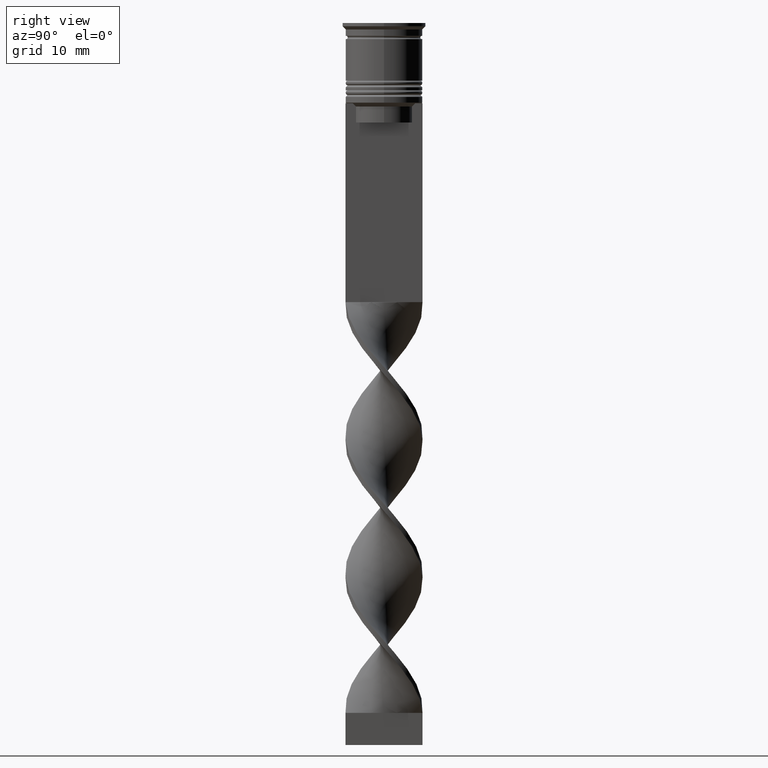
[diagram: clean part render]
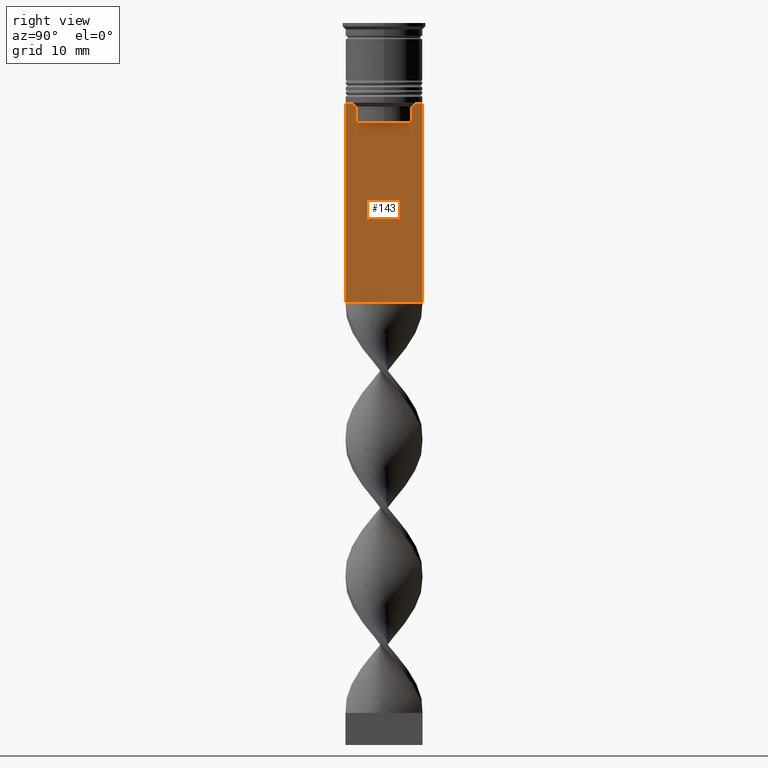
[diagram: same view with one face highlighted and labeled with its STEP entity id]
A machine part, right view. The second image highlights one B-rep face of the part: STEP entity #143.
In plain terms, the highlighted planar face has unit normal (-1, 0, 0).
Its self-contained STEP definition (entity closure, byte-faithful):
#2 = CARTESIAN_POINT ( 'NONE',  ( 0.5000000000000002220, -4.706831372970962768, -12.66671687695981774 ) ) ;
#15 = VECTOR ( 'NONE', #2517, 1000.000000000000000 ) ;
#32 = VECTOR ( 'NONE', #2877, 1000.000000000000000 ) ;
#34 = LINE ( 'NONE', #626, #32 ) ;
#143 = ADVANCED_FACE ( 'NONE', ( #1969 ), #1430, .F. ) ;
#149 = EDGE_CURVE ( 'NONE', #1038, #2399, #3064, .T. ) ;
#172 = CARTESIAN_POINT ( 'NONE',  ( 0.5000000000000002220, -6.000000000000000000, -43.50000000000000000 ) ) ;
#180 = CARTESIAN_POINT ( 'NONE',  ( 0.5000000000000002220, -5.878775382679627626, -12.50000000000000000 ) ) ;
#192 = VECTOR ( 'NONE', #609, 1000.000000000000000 ) ;
#214 = ORIENTED_EDGE ( 'NONE', *, *, #634, .T. ) ;
#265 = DIRECTION ( 'NONE',  ( 0.000000000000000000, -1.000000000000000000, 0.000000000000000000 ) ) ;
#270 = CARTESIAN_POINT ( 'NONE',  ( 0.5000000000000002220, -4.539195586926423331, -12.83338928448044314 ) ) ;
#288 = ORIENTED_EDGE ( 'NONE', *, *, #493, .T. ) ;
#308 = DIRECTION ( 'NONE',  ( 0.000000000000000000, 0.000000000000000000, -1.000000000000000000 ) ) ;
#459 = VECTOR ( 'NONE', #2255, 1000.000000000000000 ) ;
#493 = EDGE_CURVE ( 'NONE', #1217, #2519, #1967, .T. ) ;
#584 = VECTOR ( 'NONE', #308, 1000.000000000000000 ) ;
#603 = LINE ( 'NONE', #1164, #2685 ) ;
#609 = DIRECTION ( 'NONE',  ( 0.000000000000000000, 0.000000000000000000, -1.000000000000000000 ) ) ;
#619 = CARTESIAN_POINT ( 'NONE',  ( 0.5000000000000002220, -6.000000000000000000, -0.4584054212077061097 ) ) ;
#626 = CARTESIAN_POINT ( 'NONE',  ( 0.5000000000000002220, -6.000000000000000000, -12.50000000000000000 ) ) ;
#634 = EDGE_CURVE ( 'NONE', #1038, #2135, #1330, .T. ) ;
#660 = EDGE_CURVE ( 'NONE', #2519, #2600, #1608, .T. ) ;
#792 = DIRECTION ( 'NONE',  ( 0.000000000000000000, -1.000000000000000000, 0.000000000000000000 ) ) ;
#894 = ORIENTED_EDGE ( 'NONE', *, *, #1369, .T. ) ;
#910 = ORIENTED_EDGE ( 'NONE', *, *, #2246, .T. ) ;
#1038 = VERTEX_POINT ( 'NONE', #1067 ) ;
#1067 = CARTESIAN_POINT ( 'NONE',  ( 0.5000000000000002220, 6.000000000000000888, -12.50000000000000000 ) ) ;
#1096 = DIRECTION ( 'NONE',  ( -1.000000000000000000, 0.000000000000000000, 0.000000000000000000 ) ) ;
#1101 = CARTESIAN_POINT ( 'NONE',  ( 0.5000000000000002220, -4.874423042781576676, -12.50000000000000000 ) ) ;
#1144 = CARTESIAN_POINT ( 'NONE',  ( 0.5000000000000002220, 4.399999999999999467, -15.50000000000000000 ) ) ;
#1164 = CARTESIAN_POINT ( 'NONE',  ( 0.5000000000000002220, 4.371498598878878816, 0.000000000000000000 ) ) ;
#1173 = B_SPLINE_CURVE_WITH_KNOTS ( 'NONE', 3,
 ( #1307, #270, #2, #1101 ),
 .UNSPECIFIED., .F., .F.,
 ( 4, 4 ),
 ( 0.02089901220910808308, 0.02161421017310286019 ),
 .UNSPECIFIED. ) ;
#1200 = ORIENTED_EDGE ( 'NONE', *, *, #149, .F. ) ;
#1211 = EDGE_CURVE ( 'NONE', #3481, #2362, #603, .T. ) ;
#1217 = VERTEX_POINT ( 'NONE', #3089 ) ;
#1255 = CARTESIAN_POINT ( 'NONE',  ( 0.5000000000000002220, 4.371498598878878816, -13.00000000000000178 ) ) ;
#1288 = CARTESIAN_POINT ( 'NONE',  ( 0.5000000000000002220, 4.539195634199896467, -12.83338923751318816 ) ) ;
#1298 = B_SPLINE_CURVE_WITH_KNOTS ( 'NONE', 3,
 ( #3519, #2663, #1288, #1255 ),
 .UNSPECIFIED., .F., .F.,
 ( 4, 4 ),
 ( 0.008336552452178421987, 0.009045730124312839626 ),
 .UNSPECIFIED. ) ;
#1307 = CARTESIAN_POINT ( 'NONE',  ( 0.5000000000000002220, -4.371498598878878816, -13.00000000000000178 ) ) ;
#1330 = LINE ( 'NONE', #3314, #1478 ) ;
#1347 = VECTOR ( 'NONE', #1378, 1000.000000000000000 ) ;
#1369 = EDGE_CURVE ( 'NONE', #2362, #1766, #2539, .T. ) ;
#1378 = DIRECTION ( 'NONE',  ( 0.000000000000000000, 1.000000000000000000, 0.000000000000000000 ) ) ;
#1430 = PLANE ( 'NONE',  #1921 ) ;
#1450 = DIRECTION ( 'NONE',  ( 0.000000000000000000, 0.000000000000000000, 1.000000000000000000 ) ) ;
#1478 = VECTOR ( 'NONE', #792, 1000.000000000000000 ) ;
#1569 = CARTESIAN_POINT ( 'NONE',  ( 0.5000000000000002220, 4.371498598878878816, -13.00000000000000178 ) ) ;
#1608 = LINE ( 'NONE', #3560, #459 ) ;
#1619 = ORIENTED_EDGE ( 'NONE', *, *, #1211, .T. ) ;
#1649 = LINE ( 'NONE', #2803, #1939 ) ;
#1655 = CARTESIAN_POINT ( 'NONE',  ( 0.5000000000000002220, -6.000000000000000000, -12.50000000000000000 ) ) ;
#1716 = EDGE_CURVE ( 'NONE', #2462, #2399, #2626, .T. ) ;
#1750 = CARTESIAN_POINT ( 'NONE',  ( 0.5000000000000002220, 6.000000000000000888, -0.4584054212077061097 ) ) ;
#1766 = VERTEX_POINT ( 'NONE', #1922 ) ;
#1781 = CARTESIAN_POINT ( 'NONE',  ( 0.5000000000000002220, -6.000000000000000000, -0.4584054212077061097 ) ) ;
#1842 = ORIENTED_EDGE ( 'NONE', *, *, #660, .T. ) ;
#1921 = AXIS2_PLACEMENT_3D ( 'NONE', #619, #1096, #1450 ) ;
#1922 = CARTESIAN_POINT ( 'NONE',  ( 0.5000000000000002220, -4.371498598878878816, -15.50000000000000000 ) ) ;
#1939 = VECTOR ( 'NONE', #2766, 1000.000000000000000 ) ;
#1941 = CARTESIAN_POINT ( 'NONE',  ( 0.5000000000000002220, -4.371498598878878816, -13.00000000000000178 ) ) ;
#1967 = LINE ( 'NONE', #1655, #2160 ) ;
#1969 = FACE_OUTER_BOUND ( 'NONE', #2982, .T. ) ;
#1978 = LINE ( 'NONE', #1781, #192 ) ;
#2135 = VERTEX_POINT ( 'NONE', #2503 ) ;
#2160 = VECTOR ( 'NONE', #265, 1000.000000000000000 ) ;
#2246 = EDGE_CURVE ( 'NONE', #1766, #3181, #1649, .T. ) ;
#2255 = DIRECTION ( 'NONE',  ( 0.000000000000000000, -1.000000000000000000, 0.000000000000000000 ) ) ;
#2285 = DIRECTION ( 'NONE',  ( 0.000000000000000000, 0.000000000000000000, -1.000000000000000000 ) ) ;
#2309 = CARTESIAN_POINT ( 'NONE',  ( 0.5000000000000002220, 4.371498598878878816, -15.50000000000000000 ) ) ;
#2360 = CARTESIAN_POINT ( 'NONE',  ( 0.5000000000000002220, 4.874423042781576676, -12.50000000000000000 ) ) ;
#2362 = VERTEX_POINT ( 'NONE', #2309 ) ;
#2381 = CARTESIAN_POINT ( 'NONE',  ( 0.5000000000000002220, -6.000000000000000000, -12.50000000000000000 ) ) ;
#2399 = VERTEX_POINT ( 'NONE', #3117 ) ;
#2455 = ORIENTED_EDGE ( 'NONE', *, *, #2684, .T. ) ;
#2462 = VERTEX_POINT ( 'NONE', #2601 ) ;
#2503 = CARTESIAN_POINT ( 'NONE',  ( 0.5000000000000002220, 5.878775382679627626, -12.50000000000000000 ) ) ;
#2517 = DIRECTION ( 'NONE',  ( 0.000000000000000000, -1.000000000000000000, 0.000000000000000000 ) ) ;
#2519 = VERTEX_POINT ( 'NONE', #180 ) ;
#2539 = LINE ( 'NONE', #1144, #15 ) ;
#2540 = EDGE_CURVE ( 'NONE', #2673, #3481, #1298, .T. ) ;
#2600 = VERTEX_POINT ( 'NONE', #2381 ) ;
#2601 = CARTESIAN_POINT ( 'NONE',  ( 0.5000000000000002220, -5.999999999999999112, -43.50000000000000000 ) ) ;
#2626 = LINE ( 'NONE', #172, #1347 ) ;
#2635 = ORIENTED_EDGE ( 'NONE', *, *, #3546, .T. ) ;
#2663 = CARTESIAN_POINT ( 'NONE',  ( 0.5000000000000002220, 4.706831415367288329, -12.66671683478479160 ) ) ;
#2673 = VERTEX_POINT ( 'NONE', #2360 ) ;
#2684 = EDGE_CURVE ( 'NONE', #3181, #1217, #1173, .T. ) ;
#2685 = VECTOR ( 'NONE', #2285, 1000.000000000000000 ) ;
#2766 = DIRECTION ( 'NONE',  ( -0.000000000000000000, -0.000000000000000000, 1.000000000000000000 ) ) ;
#2803 = CARTESIAN_POINT ( 'NONE',  ( 0.5000000000000002220, -4.371498598878878816, 0.000000000000000000 ) ) ;
#2877 = DIRECTION ( 'NONE',  ( 0.000000000000000000, -1.000000000000000000, 0.000000000000000000 ) ) ;
#2965 = ORIENTED_EDGE ( 'NONE', *, *, #3584, .T. ) ;
#2982 = EDGE_LOOP ( 'NONE', ( #2965, #3379, #1619, #894, #910, #2455, #288, #1842, #2635, #3400, #1200, #214 ) ) ;
#3064 = LINE ( 'NONE', #1750, #584 ) ;
#3089 = CARTESIAN_POINT ( 'NONE',  ( 0.5000000000000002220, -4.874423042781576676, -12.50000000000000000 ) ) ;
#3117 = CARTESIAN_POINT ( 'NONE',  ( 0.5000000000000002220, 6.000000000000000888, -43.50000000000000000 ) ) ;
#3181 = VERTEX_POINT ( 'NONE', #1941 ) ;
#3314 = CARTESIAN_POINT ( 'NONE',  ( 0.5000000000000002220, -6.000000000000000000, -12.50000000000000000 ) ) ;
#3379 = ORIENTED_EDGE ( 'NONE', *, *, #2540, .T. ) ;
#3400 = ORIENTED_EDGE ( 'NONE', *, *, #1716, .T. ) ;
#3481 = VERTEX_POINT ( 'NONE', #1569 ) ;
#3519 = CARTESIAN_POINT ( 'NONE',  ( 0.5000000000000002220, 4.874423042781576676, -12.50000000000000000 ) ) ;
#3546 = EDGE_CURVE ( 'NONE', #2600, #2462, #1978, .T. ) ;
#3560 = CARTESIAN_POINT ( 'NONE',  ( 0.5000000000000002220, -6.000000000000000000, -12.50000000000000000 ) ) ;
#3584 = EDGE_CURVE ( 'NONE', #2135, #2673, #34, .T. ) ;